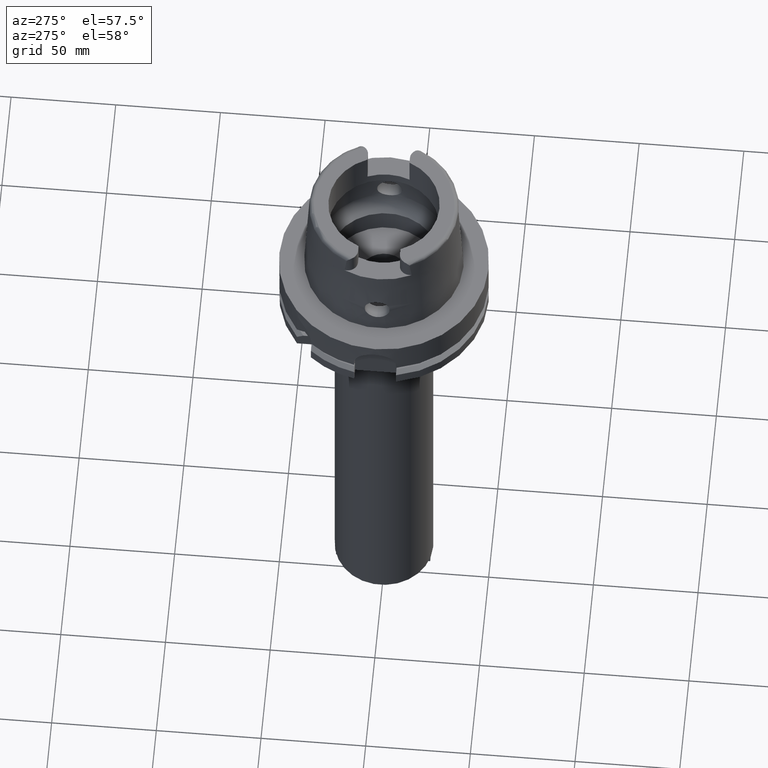
[diagram: clean part render]
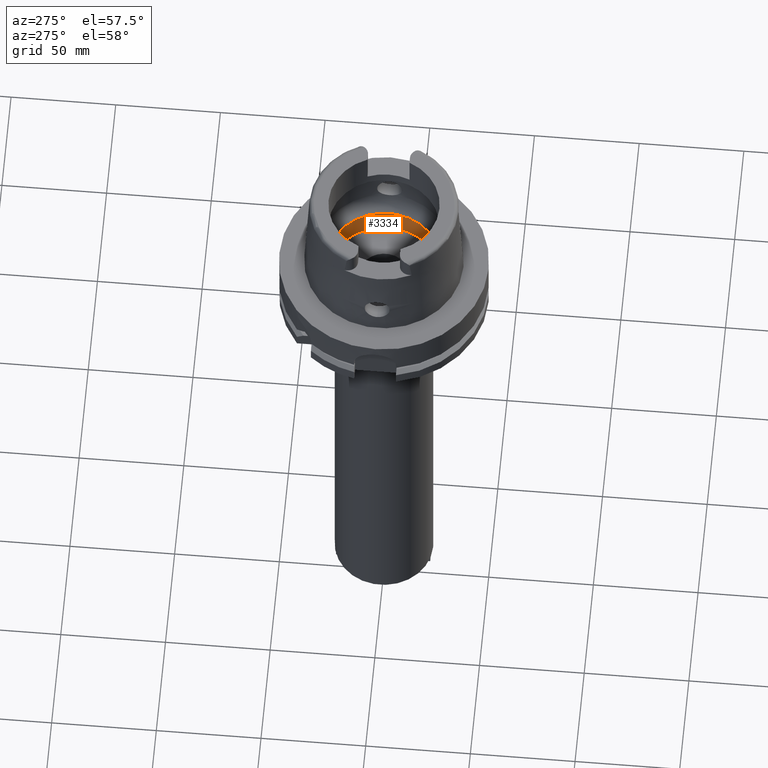
[diagram: same view with one face highlighted and labeled with its STEP entity id]
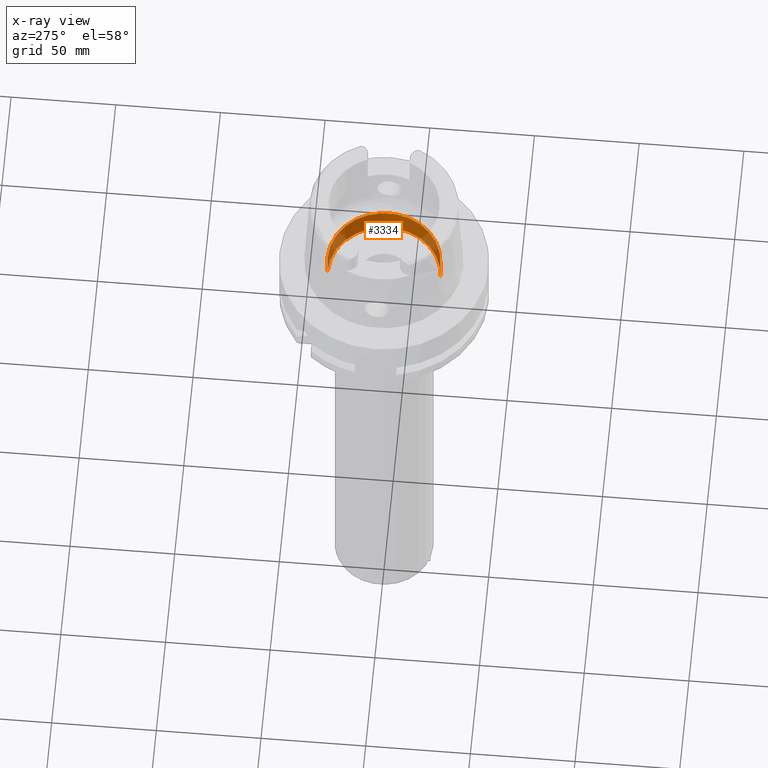
[diagram: x-ray of the same camera — body ghosted, the highlighted face saturated]
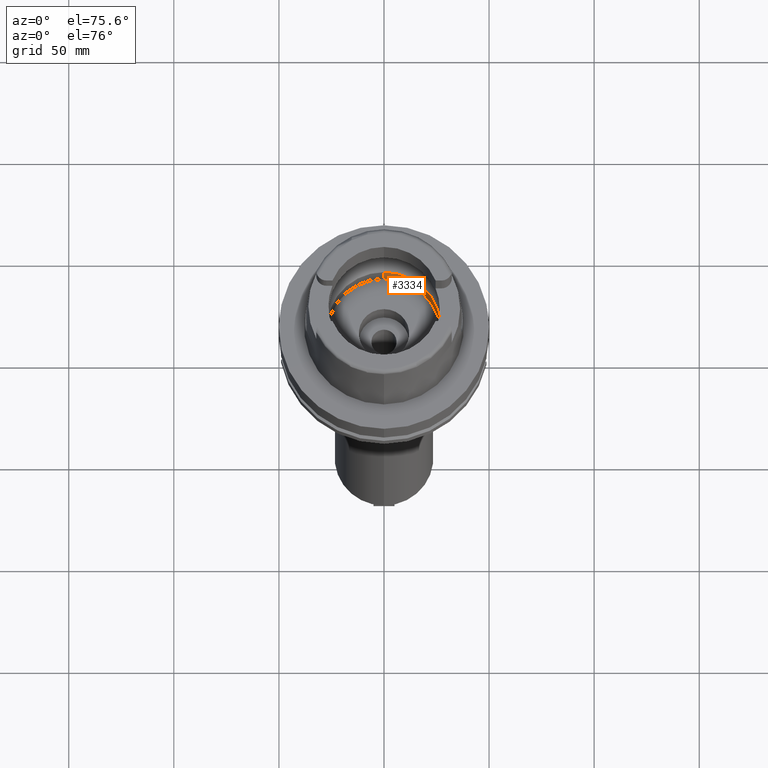
[diagram: same view with one face highlighted and labeled with its STEP entity id]
A machine part, auxiliary view. The second image highlights one B-rep face of the part: STEP entity #3334.
The next image is the same camera in x-ray: the body ghosted, the highlighted face saturated — about 27% of this face is hidden behind the body in this view.
A second angle (auxiliary view) of the same face is appended — the face is thin or edge-on in the first view.
In plain terms, the highlighted cylindrical surface (partial cylindrical patch) has radius 26.9 mm, axis along (0, 0, 1).
Its self-contained STEP definition (entity closure, byte-faithful):
#782=CARTESIAN_POINT('',(0.E0,0.E0,4.547473508865E-13));
#783=DIRECTION('',(0.E0,0.E0,1.E0));
#784=DIRECTION('',(0.E0,-1.E0,0.E0));
#785=AXIS2_PLACEMENT_3D('',#782,#783,#784);
#797=DIRECTION('',(0.E0,0.E0,1.E0));
#798=VECTOR('',#797,1.245E1);
#799=CARTESIAN_POINT('',(0.E0,-2.69E1,-1.245E1));
#800=LINE('',#799,#798);
#812=DIRECTION('',(0.E0,0.E0,1.E0));
#813=VECTOR('',#812,1.245E1);
#814=CARTESIAN_POINT('',(0.E0,2.69E1,-1.245E1));
#815=LINE('',#814,#813);
#827=CARTESIAN_POINT('',(0.E0,0.E0,-1.245E1));
#828=DIRECTION('',(0.E0,0.E0,-1.E0));
#829=DIRECTION('',(0.E0,1.E0,0.E0));
#830=AXIS2_PLACEMENT_3D('',#827,#828,#829);
#2544=CARTESIAN_POINT('',(0.E0,2.69E1,3.979039320257E-13));
#2545=VERTEX_POINT('',#2544);
#2546=CARTESIAN_POINT('',(0.E0,-2.69E1,3.979039320257E-13));
#2547=VERTEX_POINT('',#2546);
#2548=CARTESIAN_POINT('',(0.E0,2.69E1,-1.245E1));
#2549=VERTEX_POINT('',#2548);
#2550=CARTESIAN_POINT('',(0.E0,-2.69E1,-1.245E1));
#2551=VERTEX_POINT('',#2550);
#3322=CARTESIAN_POINT('',(0.E0,0.E0,-2.839E2));
#3323=DIRECTION('',(0.E0,0.E0,1.E0));
#3324=DIRECTION('',(0.E0,1.E0,0.E0));
#3325=AXIS2_PLACEMENT_3D('',#3322,#3323,#3324);
#3326=CYLINDRICAL_SURFACE('',#3325,2.69E1);
#3327=ORIENTED_EDGE('',*,*,#3312,.T.);
#3328=ORIENTED_EDGE('',*,*,#3289,.F.);
#3329=ORIENTED_EDGE('',*,*,#3316,.F.);
#3331=ORIENTED_EDGE('',*,*,#3330,.F.);
#3332=EDGE_LOOP('',(#3327,#3328,#3329,#3331));
#3333=FACE_OUTER_BOUND('',#3332,.F.);
#786=CIRCLE('',#785,2.69E1);
#831=CIRCLE('',#830,2.69E1);
#3289=EDGE_CURVE('',#2547,#2545,#786,.T.);
#3312=EDGE_CURVE('',#2549,#2545,#815,.T.);
#3316=EDGE_CURVE('',#2551,#2547,#800,.T.);
#3330=EDGE_CURVE('',#2549,#2551,#831,.T.);
#3334=ADVANCED_FACE('',(#3333),#3326,.F.);